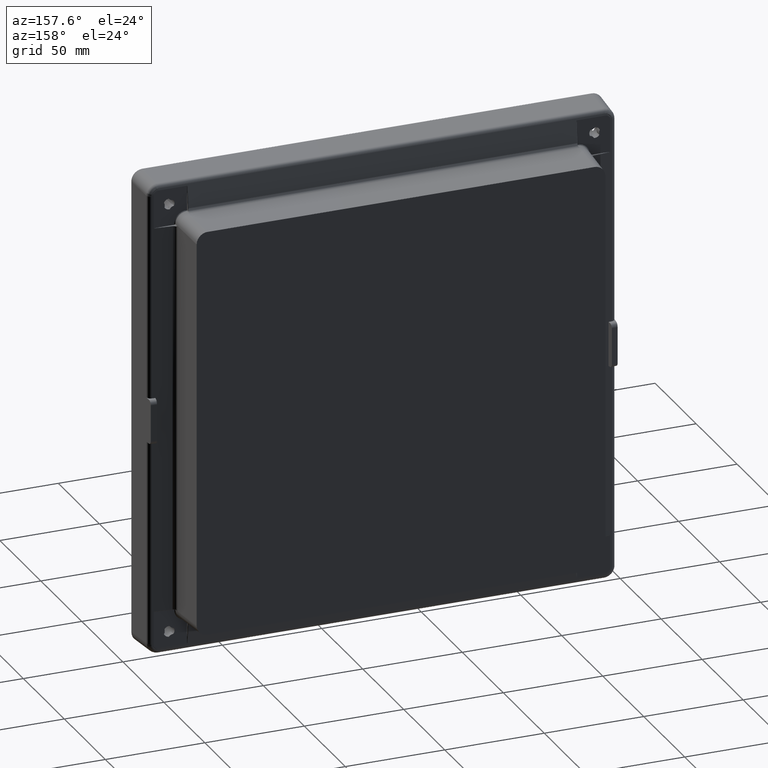
[diagram: clean part render]
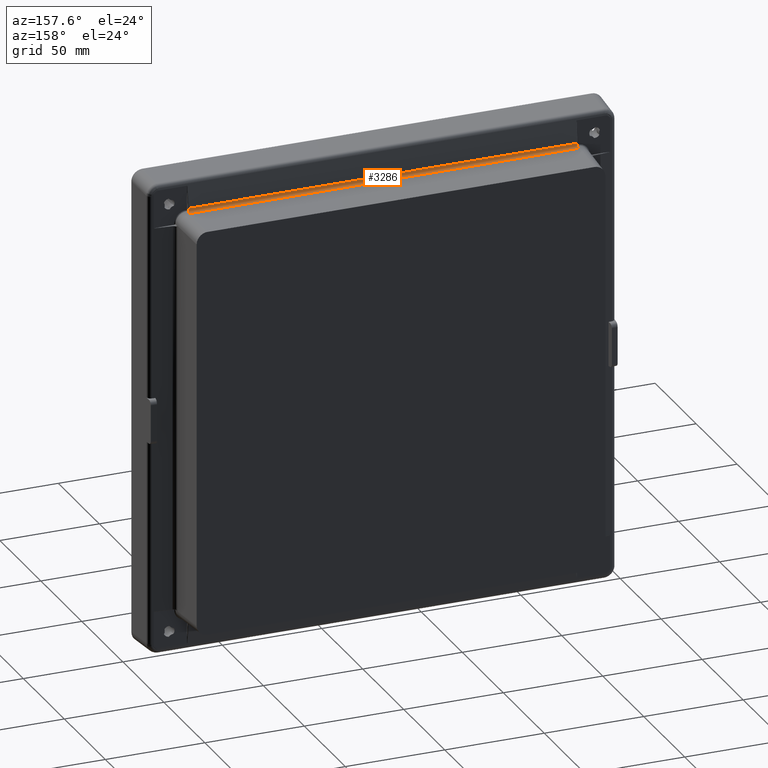
[diagram: same view with one face highlighted and labeled with its STEP entity id]
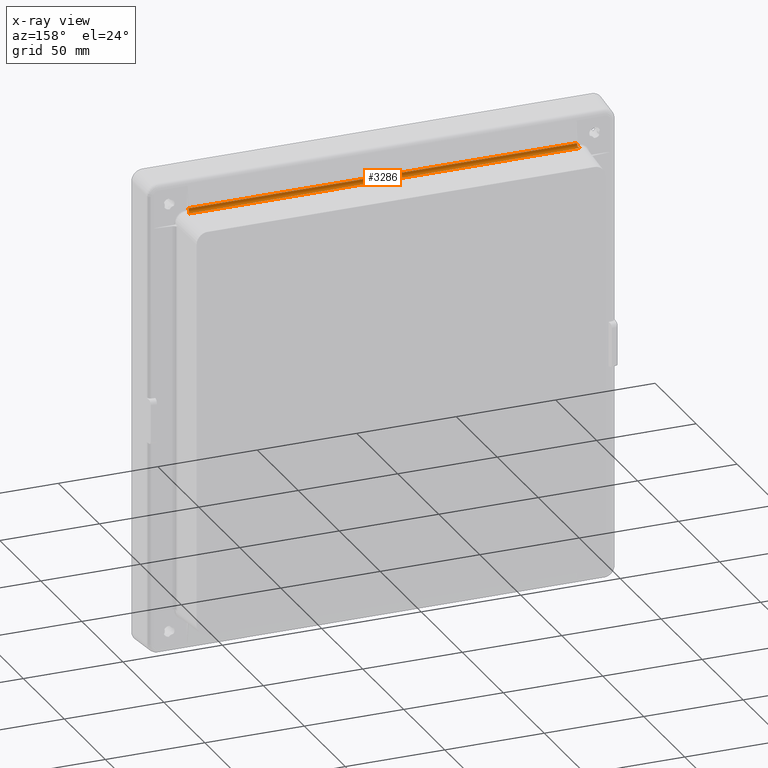
[diagram: x-ray of the same camera — body ghosted, the highlighted face saturated]
A machine part, auxiliary view. The second image highlights one B-rep face of the part: STEP entity #3286.
The next image is the same camera in x-ray: the body ghosted, the highlighted face saturated — about 0% of this face is hidden behind the body in this view.
In plain terms, the highlighted face is a freeform B-spline surface patch.
Its self-contained STEP definition (entity closure, byte-faithful):
#222 = CARTESIAN_POINT ( 'NONE',  ( -73.96928922018398100, 12.65755492457387800, 103.6182482106131300 ) ) ;
#223 = CARTESIAN_POINT ( 'NONE',  ( -74.00530845701324300, 12.71917764804458200, 103.5973425924824800 ) ) ;
#224 = CARTESIAN_POINT ( 'NONE',  ( -74.12218031288883000, 12.91525972402866000, 103.5422339734940600 ) ) ;
#225 = CARTESIAN_POINT ( 'NONE',  ( -74.21184707732298600, 13.06114641595443800, 103.5155823372549800 ) ) ;
#226 = CARTESIAN_POINT ( 'NONE',  ( -74.31153866640929100, 13.22099845808221200, 103.5071168309074100 ) ) ;
#227 = CARTESIAN_POINT ( 'NONE',  ( -73.60402936184299000, 11.74488450292418700, 104.2791754920520800 ) ) ;
#229 = B_SPLINE_CURVE_WITH_KNOTS ( 'NONE', 3,
 ( #226, #225, #224, #223, #222, #292, #291, #290, #289, #288, #287, #286, #285, #284, #283, #282, #281, #280, #279, #278, #277, #276 ),
 .UNSPECIFIED., .F., .F.,
 ( 4, 2, 2, 1, 1, 1, 2, 2, 2, 1, 2, 2, 4 ),
 ( 0.0000000000000000000, 0.2500000000001395000, 0.3750000000002025600, 0.4375000000002451400, 0.4687500000002677300, 0.4843750000002785000, 0.4921875000002792200, 0.5000000000002800000, 0.6250000000002228200, 0.6875000000001931800, 0.7187500000001795200, 0.7500000000001658700, 1.000000000000000000 ),
 .UNSPECIFIED. ) ;
#276 = CARTESIAN_POINT ( 'NONE',  ( -73.60402936184299000, 11.74488450292418700, 104.2791754920520800 ) ) ;
#277 = CARTESIAN_POINT ( 'NONE',  ( -73.60991171010124400, 11.84496763693580800, 104.1500455939922500 ) ) ;
#278 = CARTESIAN_POINT ( 'NONE',  ( -73.63341335665178600, 11.95536668687333800, 104.0402906301599700 ) ) ;
#279 = CARTESIAN_POINT ( 'NONE',  ( -73.67967441960001900, 12.08301848925180800, 103.9371653949365400 ) ) ;
#280 = CARTESIAN_POINT ( 'NONE',  ( -73.68431968114799700, 12.09528545437774300, 103.9275283022907700 ) ) ;
#281 = CARTESIAN_POINT ( 'NONE',  ( -73.69500205671418800, 12.12256629121584900, 103.9066162301439000 ) ) ;
#282 = CARTESIAN_POINT ( 'NONE',  ( -73.71192261597626300, 12.16432180134292200, 103.8754460574186600 ) ) ;
#283 = CARTESIAN_POINT ( 'NONE',  ( -73.73153416297688500, 12.20861559170102600, 103.8450013506120200 ) ) ;
#284 = CARTESIAN_POINT ( 'NONE',  ( -73.77434524062955700, 12.30065740714483600, 103.7854548647277400 ) ) ;
#285 = CARTESIAN_POINT ( 'NONE',  ( -73.80766993726649600, 12.36663622006620700, 103.7475398541425300 ) ) ;
#286 = CARTESIAN_POINT ( 'NONE',  ( -73.84816040428276600, 12.44170832601021300, 103.7103203276171700 ) ) ;
#287 = CARTESIAN_POINT ( 'NONE',  ( -73.84919072528730100, 12.44361160202114600, 103.7093870787671500 ) ) ;
#288 = CARTESIAN_POINT ( 'NONE',  ( -73.85263726872470600, 12.44997376083770700, 103.7062746828196400 ) ) ;
#289 = CARTESIAN_POINT ( 'NONE',  ( -73.85784151413621100, 12.45955991000859700, 103.7016165097440700 ) ) ;
#290 = CARTESIAN_POINT ( 'NONE',  ( -73.87022576521775400, 12.48222867586017100, 103.6908242666911100 ) ) ;
#291 = CARTESIAN_POINT ( 'NONE',  ( -73.89595831453255000, 12.52877580413264800, 103.6695785883415500 ) ) ;
#292 = CARTESIAN_POINT ( 'NONE',  ( -73.91966743763401800, 12.57076394357763100, 103.6520583616715900 ) ) ;
#1819 = CARTESIAN_POINT ( 'NONE',  ( 122.3126562063933000, 13.22093126750957700, 103.5071211204381700 ) ) ;
#1820 = CARTESIAN_POINT ( 'NONE',  ( 121.6968766142291000, 12.12757527302194700, 103.9026393268258600 ) ) ;
#1821 = CARTESIAN_POINT ( 'NONE',  ( 121.7070631304304000, 12.15221237369496900, 103.8846109615866600 ) ) ;
#1822 = CARTESIAN_POINT ( 'NONE',  ( 121.7278781417524300, 12.20091907914214600, 103.8500561552948100 ) ) ;
#1823 = CARTESIAN_POINT ( 'NONE',  ( 121.7423379722207700, 12.23263041969155700, 103.8290195577623900 ) ) ;
#1824 = CARTESIAN_POINT ( 'NONE',  ( 121.7864130723087000, 12.32515811843219600, 103.7710443564645000 ) ) ;
#1825 = CARTESIAN_POINT ( 'NONE',  ( 121.8167795994517800, 12.38354394615547300, 103.7391746259293900 ) ) ;
#1826 = CARTESIAN_POINT ( 'NONE',  ( 121.8467802977664100, 12.43913695704876200, 103.7115884536796500 ) ) ;
#1827 = CARTESIAN_POINT ( 'NONE',  ( 121.8491064264711800, 12.44344119865735700, 103.7094616900791100 ) ) ;
#1828 = CARTESIAN_POINT ( 'NONE',  ( 121.8523415747223200, 12.44941165297856500, 103.7065349902039800 ) ) ;
#1829 = CARTESIAN_POINT ( 'NONE',  ( 121.8571940237569200, 12.45834875955988400, 103.7021808489993000 ) ) ;
#1830 = CARTESIAN_POINT ( 'NONE',  ( 121.8685107353921800, 12.47906885751550600, 103.6922704486451700 ) ) ;
#1831 = CARTESIAN_POINT ( 'NONE',  ( 121.8781884388198300, 12.49659023819453700, 103.6841959095891500 ) ) ;
#1832 = CARTESIAN_POINT ( 'NONE',  ( 121.8974830591051100, 12.53128960791326200, 103.6685875139100700 ) ) ;
#1833 = CARTESIAN_POINT ( 'NONE',  ( 121.9102591515429300, 12.55395508205127300, 103.6589058374995200 ) ) ;
#1834 = CARTESIAN_POINT ( 'NONE',  ( 121.9482046081107900, 12.62054191824016200, 103.6318205757563900 ) ) ;
#1840 = CARTESIAN_POINT ( 'NONE',  ( 121.9730030609064800, 12.66308269375172000, 103.6163625969942100 ) ) ;
#1841 = CARTESIAN_POINT ( 'NONE',  ( 122.0451054547221000, 12.78506238268867400, 103.5762580177571400 ) ) ;
#1842 = CARTESIAN_POINT ( 'NONE',  ( 122.0900367728439700, 12.85881528971828700, 103.5578362813396300 ) ) ;
#1843 = CARTESIAN_POINT ( 'NONE',  ( 122.2111772953673200, 13.05609271679792000, 103.5177718896658200 ) ) ;
#1844 = CARTESIAN_POINT ( 'NONE',  ( 122.2734192583067500, 13.15557842697104400, 103.5105653393457900 ) ) ;
#1845 = CARTESIAN_POINT ( 'NONE',  ( 122.3126562063933000, 13.22093126750957700, 103.5071211204381700 ) ) ;
#1847 = B_SPLINE_CURVE_WITH_KNOTS ( 'NONE', 3,
 ( #1845, #1844, #1843, #1842, #1841, #1840, #1834, #1833, #1832, #1831, #1830, #1829, #1828, #1827, #1826, #1825, #1824, #1823, #1822, #1821, #1820, #1869, #1868, #1867, #1866, #1865, #1864, #1863, #1862, #1861 ),
 .UNSPECIFIED., .F., .F.,
 ( 4, 2, 2, 2, 2, 1, 1, 2, 2, 2, 2, 1, 1, 2, 2, 2, 4 ),
 ( 0.0000000000000000000, 0.2499999999998076000, 0.3749999999997190000, 0.4374999999996814200, 0.4687499999996655500, 0.4843749999996534400, 0.4921874999996468900, 0.4960937499996465000, 0.4999999999996461700, 0.6249999999997084600, 0.6874999999997396500, 0.7187499999997519800, 0.7343749999997637400, 0.7421874999997687400, 0.7499999999997737400, 0.8749999999998867600, 1.000000000000000000 ),
 .UNSPECIFIED. ) ;
#1859 = FACE_OUTER_BOUND ( 'NONE', #3280, .T. ) ;
#1861 = CARTESIAN_POINT ( 'NONE',  ( 121.6040293618430000, 11.74488450292410100, 104.2791754920520200 ) ) ;
#1862 = CARTESIAN_POINT ( 'NONE',  ( 121.6055362553823600, 11.77063404713272200, 104.2459527517452600 ) ) ;
#1863 = CARTESIAN_POINT ( 'NONE',  ( 121.6073618774865100, 11.80833189068460400, 104.1991521538815700 ) ) ;
#1864 = CARTESIAN_POINT ( 'NONE',  ( 121.6260419033590100, 11.91426179560798800, 104.0853303299418300 ) ) ;
#1865 = CARTESIAN_POINT ( 'NONE',  ( 121.6433430825268800, 11.98275650612237400, 104.0181641282349300 ) ) ;
#1866 = CARTESIAN_POINT ( 'NONE',  ( 121.6765141013775500, 12.07427986133990000, 103.9441786290855300 ) ) ;
#1867 = CARTESIAN_POINT ( 'NONE',  ( 121.6776462091560200, 12.07734932445684900, 103.9417259315669600 ) ) ;
#1868 = CARTESIAN_POINT ( 'NONE',  ( 121.6807760346389800, 12.08577285378505700, 103.9350290850410800 ) ) ;
#1869 = CARTESIAN_POINT ( 'NONE',  ( 121.6855163256370100, 12.09837820667985900, 103.9250910842793700 ) ) ;
#1870 = CARTESIAN_POINT ( 'NONE',  ( 121.6040293618430000, 11.74488450292410100, 104.2791754920520200 ) ) ;
#1872 = CARTESIAN_POINT ( 'NONE',  ( 123.4933194425957800, 11.33487797383369300, 105.3126843953760000 ) ) ;
#1873 = CARTESIAN_POINT ( 'NONE',  ( -75.49302698279372200, 11.33487797383369500, 105.3126843953760000 ) ) ;
#1874 = CARTESIAN_POINT ( 'NONE',  ( 123.4933194425957800, 11.43437859681027500, 104.2793309160461100 ) ) ;
#1875 = CARTESIAN_POINT ( 'NONE',  ( -75.49302698279373700, 11.43437859681027600, 104.2793309160461100 ) ) ;
#1876 = CARTESIAN_POINT ( 'NONE',  ( 123.4933194425957800, 12.18428834607553800, 103.5614485056383400 ) ) ;
#1877 = CARTESIAN_POINT ( 'NONE',  ( -75.49302698279373700, 12.18428834607554200, 103.5614485056383400 ) ) ;
#1878 = CARTESIAN_POINT ( 'NONE',  ( 123.4933194425957800, 13.22099845808223300, 103.5071168309078500 ) ) ;
#1879 = CARTESIAN_POINT ( 'NONE',  ( -75.49302698279372200, 13.22099845808223500, 103.5071168309078500 ) ) ;
#1881 = DIRECTION ( 'NONE',  ( -1.000000000000000000, 1.776857383966246500E-017, 0.0000000000000000000 ) ) ;
#1882 = VECTOR ( 'NONE', #1881, 1000.000000000000000 ) ;
#1883 = CARTESIAN_POINT ( 'NONE',  ( -24.81437001163847400, 11.33487797383372900, 105.3126843953760000 ) ) ;
#1884 = LINE ( 'NONE', #1883, #1882 ) ;
#1885 =( BOUNDED_SURFACE ( )  B_SPLINE_SURFACE ( 3, 1, ( 
 ( #1879, #1878 ),
 ( #1877, #1876 ),
 ( #1875, #1874 ),
 ( #1873, #1872 ) ),
 .UNSPECIFIED., .F., .F., .F. ) 
 B_SPLINE_SURFACE_WITH_KNOTS ( ( 4, 4 ),
 ( 2, 2 ),
 ( 0.0000000000000000000, 1.000000000000000000 ),
 ( 0.0000000000000000000, 1.000000000000000000 ),
 .UNSPECIFIED. ) 
 GEOMETRIC_REPRESENTATION_ITEM ( )  RATIONAL_B_SPLINE_SURFACE ( (
 ( 1.000000000000000000, 1.000000000000000000),
 ( 0.8383766562560803800, 0.8383766562560803800),
 ( 0.8383766562560803800, 0.8383766562560803800),
 ( 1.000000000000000000, 1.000000000000000000) ) ) 
 REPRESENTATION_ITEM ( '' )  SURFACE ( )  );
#3034 = CARTESIAN_POINT ( 'NONE',  ( -73.60402936184299000, 11.74488450292418700, 104.2791754920520800 ) ) ;
#3035 = CARTESIAN_POINT ( 'NONE',  ( -73.61792445058698300, 11.51433312237500000, 104.5766389614150000 ) ) ;
#3036 = CARTESIAN_POINT ( 'NONE',  ( -73.62656604083999000, 11.37094932687790000, 104.9380690707950000 ) ) ;
#3058 = CARTESIAN_POINT ( 'NONE',  ( -73.62874002327696100, 11.33487797383373100, 105.3126843953760000 ) ) ;
#3059 = B_SPLINE_CURVE_WITH_KNOTS ( 'NONE', 3,
 ( #3058, #3036, #3035, #3034 ),
 .UNSPECIFIED., .F., .F.,
 ( 4, 4 ),
 ( 0.0000000000000000000, 1.000000000000000000 ),
 .UNSPECIFIED. ) ;
#3270 = VERTEX_POINT ( 'NONE', #1819 ) ;
#3279 = EDGE_CURVE ( 'NONE', #3270, #3293, #1847, .T. ) ;
#3280 = EDGE_LOOP ( 'NONE', ( #3281, #3318, #3312, #3309, #3310, #3305 ) ) ;
#3281 = ORIENTED_EDGE ( 'NONE', *, *, #3287, .F. ) ;
#3286 = ADVANCED_FACE ( 'NONE', ( #1859 ), #1885, .T. ) ;
#3287 = EDGE_CURVE ( 'NONE', #3322, #6263, #1884, .T. ) ;
#3293 = VERTEX_POINT ( 'NONE', #1870 ) ;
#3305 = ORIENTED_EDGE ( 'NONE', *, *, #11981, .F. ) ;
#3309 = ORIENTED_EDGE ( 'NONE', *, *, #3313, .F. ) ;
#3310 = ORIENTED_EDGE ( 'NONE', *, *, #9782, .T. ) ;
#3311 = EDGE_CURVE ( 'NONE', #3322, #3293, #4313, .T. ) ;
#3312 = ORIENTED_EDGE ( 'NONE', *, *, #3279, .F. ) ;
#3313 = EDGE_CURVE ( 'NONE', #6132, #3270, #4308, .T. ) ;
#3318 = ORIENTED_EDGE ( 'NONE', *, *, #3311, .T. ) ;
#3322 = VERTEX_POINT ( 'NONE', #4351 ) ;
#4305 = DIRECTION ( 'NONE',  ( 1.000000000000000000, 1.764516657462835600E-017, 0.0000000000000000000 ) ) ;
#4306 = VECTOR ( 'NONE', #4305, 1000.000000000000000 ) ;
#4307 = CARTESIAN_POINT ( 'NONE',  ( -25.15576933320467400, 13.22099845808221200, 103.5071168309074100 ) ) ;
#4308 = LINE ( 'NONE', #4307, #4306 ) ;
#4309 = CARTESIAN_POINT ( 'NONE',  ( 121.6040293618430000, 11.74488450292410100, 104.2791754920520200 ) ) ;
#4310 = CARTESIAN_POINT ( 'NONE',  ( 121.6183427499311000, 11.50640714817257000, 104.5868652622893600 ) ) ;
#4311 = CARTESIAN_POINT ( 'NONE',  ( 121.6265796370757800, 11.36955979052549500, 104.9524999575721300 ) ) ;
#4312 = CARTESIAN_POINT ( 'NONE',  ( 121.6287400232769900, 11.33487797383372900, 105.3126843953760000 ) ) ;
#4313 = B_SPLINE_CURVE_WITH_KNOTS ( 'NONE', 3,
 ( #4312, #4311, #4310, #4309 ),
 .UNSPECIFIED., .F., .F.,
 ( 4, 4 ),
 ( 0.0000000000000000000, 1.000000000000000000 ),
 .UNSPECIFIED. ) ;
#4351 = CARTESIAN_POINT ( 'NONE',  ( 121.6287400232769900, 11.33487797383372900, 105.3126843953760000 ) ) ;
#6132 = VERTEX_POINT ( 'NONE', #8537 ) ;
#6263 = VERTEX_POINT ( 'NONE', #8892 ) ;
#8537 = CARTESIAN_POINT ( 'NONE',  ( -74.31153866640929100, 13.22099845808221200, 103.5071168309074100 ) ) ;
#8892 = CARTESIAN_POINT ( 'NONE',  ( -73.62874002327696100, 11.33487797383373100, 105.3126843953760000 ) ) ;
#9782 = EDGE_CURVE ( 'NONE', #6132, #9938, #229, .T. ) ;
#9938 = VERTEX_POINT ( 'NONE', #227 ) ;
#11981 = EDGE_CURVE ( 'NONE', #6263, #9938, #3059, .T. ) ;